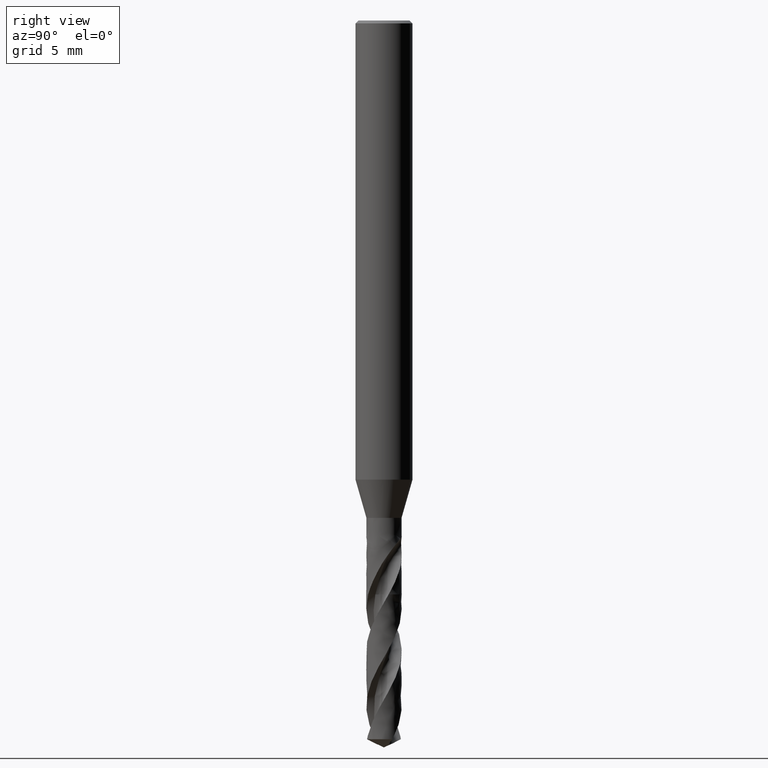
[diagram: clean part render]
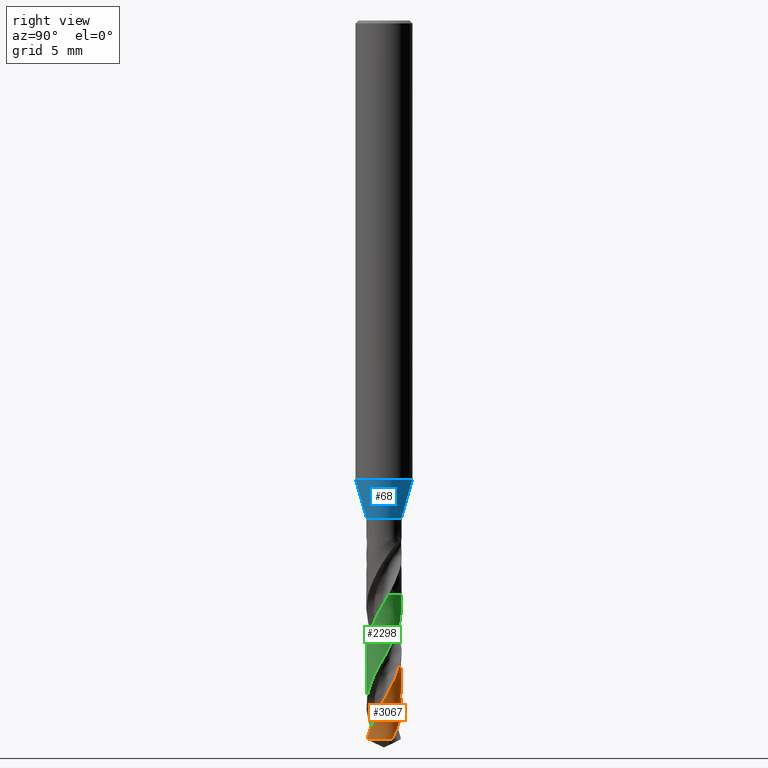
[diagram: same view with three faces highlighted in distinct colors, each labeled with its STEP entity id]
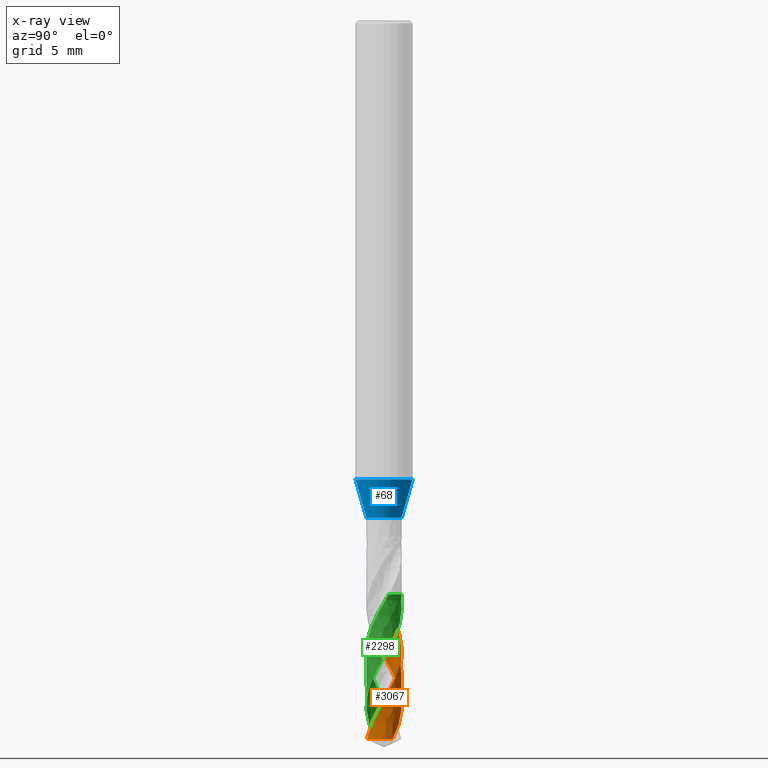
[diagram: x-ray of the same camera — body ghosted, the three highlighted faces saturated]
A machine part, right view with three faces highlighted in distinct colors.
The next image is the same camera in x-ray (body ghosted, the three faces saturated) — at least one of them is partly hidden behind the body in this view.
Their STEP definitions:

[orange] entity #3067 — the highlighted face is a freeform B-spline surface patch.
#1522 = VERTEX_POINT('', #1523);
#1523 = CARTESIAN_POINT('', (-0.925, 1.91950518014579E-15, -30.4228985366592));
#1530 = EDGE_CURVE('', #1522, #1531, #1533, .T.);
#1531 = VERTEX_POINT('', #1532);
#1532 = CARTESIAN_POINT('', (-0.925, 2.09470029642407E-15, -33.2840519141108));
#1533 = LINE('', #1534, #1535);
#1534 = CARTESIAN_POINT('', (-0.925, 1.91950518014579E-15, -30.4228985366592));
#1535 = VECTOR('', #1536, 2.86115337745154);
#1536 = DIRECTION('', (0., 1.75195116278283E-16, -2.86115337745154));
#1669 = VERTEX_POINT('', #1670);
#1670 = CARTESIAN_POINT('', (0.271894161701738, -0.884137186658555, -37.5686654162066));
#1746 = EDGE_CURVE('', #1747, #1669, #1749, .T.);
#1747 = VERTEX_POINT('', #1748);
#1748 = CARTESIAN_POINT('', (0.362879055762634, -0.850848864892476, -37.3976636512472));
#1749 = B_SPLINE_CURVE_WITH_KNOTS('', 3, (#1750, #1751, #1752, #1753), .UNSPECIFIED., .F., .U., (4, 4), (0., 0.196539988125893), .UNSPECIFIED.);
#1750 = CARTESIAN_POINT('', (0.362879055762634, -0.850848864892476, -37.3976636512472));
#1751 = CARTESIAN_POINT('', (0.333159895848818, -0.863523807684986, -37.4546558760244));
#1752 = CARTESIAN_POINT('', (0.302769426541903, -0.874642275260515, -37.5116692671751));
#1753 = CARTESIAN_POINT('', (0.271894161701738, -0.884137186658555, -37.5686654162066));
#2881 = EDGE_CURVE('', #2882, #1531, #2884, .T.);
#2882 = VERTEX_POINT('', #2883);
#2883 = CARTESIAN_POINT('', (0.812066758908832, 0.442913737736037, -37.5686654162066));
#2884 = B_SPLINE_CURVE_WITH_KNOTS('', 3, (#2885, #2886, #2887, #2888, #2889, #2890, #2891, #2892, #2893, #2894, #2895, #2896, #2897, #2898, #2899, #2900, #2901, #2902, #2903, #2904, #2905, #2906, #2907, #2908, #2909, #2910, #2911, #2912, #2913, #2914, #2915, #2916, #2917, #2918, #2919, #2920, #2921, #2922, #2923, #2924, #2925, #2926, #2927, #2928, #2929, #2930, #2931, #2932, #2933, #2934, #2935, #2936, #2937, #2938, #2939, #2940, #2941, #2942), .UNSPECIFIED., .F., .U., (4, 3, 3, 3, 3, 3, 3, 3, 3, 3, 3, 3, 3, 3, 3, 3, 3, 3, 3, 4), (0., 0.295842943623766, 0.591457704914496, 0.886848888350885, 1.18201873387939, 1.4769661943372, 1.7716878859588, 1.968269921476, 1.9942101926381, 2.02015892612081, 2.31678304295163, 2.61313865224851, 2.909242635387, 3.20510690412256, 3.50074015259977, 3.79614732293861, 4.09133090457117, 4.38629006816248, 4.68102162213857, 4.93150001041068), .UNSPECIFIED.);
#2885 = CARTESIAN_POINT('', (0.812066758908832, 0.442913737736037, -37.5686654162066));
#2886 = CARTESIAN_POINT('', (0.788719218323969, 0.485720632162377, -37.482949343206));
#2887 = CARTESIAN_POINT('', (0.76195595837777, 0.526713248863934, -37.3971711722988));
#2888 = CARTESIAN_POINT('', (0.732148644926655, 0.565317045322418, -37.3114620479522));
#2889 = CARTESIAN_POINT('', (0.702364321722465, 0.603891066846161, -37.2258190306681));
#2890 = CARTESIAN_POINT('', (0.669495854562395, 0.640137933745935, -37.1401141150612));
#2891 = CARTESIAN_POINT('', (0.634000138010515, 0.673549422835957, -37.0544781765889));
#2892 = CARTESIAN_POINT('', (0.598531267398636, 0.706935642318302, -36.9689070058545));
#2893 = CARTESIAN_POINT('', (0.560386043588031, 0.737540742771058, -36.8832738812441));
#2894 = CARTESIAN_POINT('', (0.520094755851492, 0.764935582213157, -36.797709632874));
#2895 = CARTESIAN_POINT('', (0.479833658553373, 0.792309894582042, -36.7122094981701));
#2896 = CARTESIAN_POINT('', (0.437369279620449, 0.816519825584494, -36.6266476175681));
#2897 = CARTESIAN_POINT('', (0.393292147406076, 0.837225350063394, -36.5411545205396));
#2898 = CARTESIAN_POINT('', (0.349248223516713, 0.857915274711909, -36.4557258352007));
#2899 = CARTESIAN_POINT('', (0.303528106393631, 0.875137023140049, -36.3702353624237));
#2900 = CARTESIAN_POINT('', (0.256767331718317, 0.88864815161164, -36.2848135862102));
#2901 = CARTESIAN_POINT('', (0.210042350284493, 0.902148937930272, -36.1994571964726));
#2902 = CARTESIAN_POINT('', (0.162208263802413, 0.911965004374228, -36.114039219));
#2903 = CARTESIAN_POINT('', (0.11393004154974, 0.917956941055777, -36.0286898291886));
#2904 = CARTESIAN_POINT('', (0.0817280303935084, 0.921953617048874, -35.9717610137798));
#2905 = CARTESIAN_POINT('', (0.0493019663273122, 0.924255165461492, -35.9148143539505));
#2906 = CARTESIAN_POINT('', (0.0168528502833992, 0.924846463710421, -35.8578886286614));
#2907 = CARTESIAN_POINT('', (0.0125709795268205, 0.924924489339134, -35.8503769109899));
#2908 = CARTESIAN_POINT('', (0.00828849737551177, 0.924972779089471, -35.8428651740759));
#2909 = CARTESIAN_POINT('', (0.00400586953109492, 0.924991325910305, -35.8353535056651));
#2910 = CARTESIAN_POINT('', (-0.000278155406267066, 0.925009878781544, -35.8278393867732));
#2911 = CARTESIAN_POINT('', (-0.00456237796954013, 0.924998669564724, -35.8203252481252));
#2912 = CARTESIAN_POINT('', (-0.0088463376493681, 0.924957697578758, -35.8128111808276));
#2913 = CARTESIAN_POINT('', (-0.0578169649601218, 0.924489340263363, -35.7269166774427));
#2914 = CARTESIAN_POINT('', (-0.106793853399111, 0.92011936157262, -35.6409592603479));
#2915 = CARTESIAN_POINT('', (-0.155085828485638, 0.911906456717828, -35.5550718879023));
#2916 = CARTESIAN_POINT('', (-0.203334089125484, 0.903700986278189, -35.4692622616859));
#2917 = CARTESIAN_POINT('', (-0.250971838998413, 0.891647099654104, -35.3833897500836));
#2918 = CARTESIAN_POINT('', (-0.297327162538436, 0.875911843975697, -35.2975870574712));
#2919 = CARTESIAN_POINT('', (-0.343643127241921, 0.860189948604344, -35.2118572172066));
#2920 = CARTESIAN_POINT('', (-0.388749335588352, 0.840769003944444, -35.1260646766392));
#2921 = CARTESIAN_POINT('', (-0.43200982319226, 0.817919624819825, -35.0403419364931));
#2922 = CARTESIAN_POINT('', (-0.475235288768276, 0.795088743674247, -34.9546885941822));
#2923 = CARTESIAN_POINT('', (-0.516683474973812, 0.768800403783122, -34.8689725525605));
#2924 = CARTESIAN_POINT('', (-0.555770160960998, 0.739421752577914, -34.7833261230432));
#2925 = CARTESIAN_POINT('', (-0.594826326816998, 0.710066041160672, -34.69774656899));
#2926 = CARTESIAN_POINT('', (-0.631584030379025, 0.677580227338801, -34.6121044941311));
#2927 = CARTESIAN_POINT('', (-0.665525088282562, 0.64241836591624, -34.5265320099682));
#2928 = CARTESIAN_POINT('', (-0.699440190610315, 0.607283393648443, -34.4410249652239));
#2929 = CARTESIAN_POINT('', (-0.730594254407018, 0.569423318082944, -34.3554553897683));
#2930 = CARTESIAN_POINT('', (-0.758547987726514, 0.529367500245395, -34.2699552412659));
#2931 = CARTESIAN_POINT('', (-0.786480563336598, 0.489341999980975, -34.1845198063842));
#2932 = CARTESIAN_POINT('', (-0.811260038683053, 0.447063331151001, -34.099022016164));
#2933 = CARTESIAN_POINT('', (-0.832536556359597, 0.403122664117196, -34.0135936218139));
#2934 = CARTESIAN_POINT('', (-0.853796898223128, 0.359215403678609, -33.9282301757676));
#2935 = CARTESIAN_POINT('', (-0.871591736194958, 0.313582317526801, -33.8428043655179));
#2936 = CARTESIAN_POINT('', (-0.885669247563938, 0.266861357112622, -33.7574478009906));
#2937 = CARTESIAN_POINT('', (-0.899735895812386, 0.220176449620798, -33.6721571031228));
#2938 = CARTESIAN_POINT('', (-0.910112266913898, 0.172334584031884, -33.586804217329));
#2939 = CARTESIAN_POINT('', (-0.916650365687522, 0.124004463971796, -33.5015205314175));
#2940 = CARTESIAN_POINT('', (-0.922206786169444, 0.0829309840055791, -33.4290419660762));
#2941 = CARTESIAN_POINT('', (-0.925, 0.0414562931850595, -33.356525514507));
#2942 = CARTESIAN_POINT('', (-0.925, 1.91242163844136E-15, -33.2840519141108));
#3067 = ADVANCED_FACE('', (#3068), #3180, .T.);
#3068 = FACE_OUTER_BOUND('', #3069, .T.);
#3069 = EDGE_LOOP('', (#3070, #3071, #3078, #3079, #3080));
#3070 = ORIENTED_EDGE('', *, *, #1746, .T.);
#3071 = ORIENTED_EDGE('', *, *, #3072, .F.);
#3072 = EDGE_CURVE('', #2882, #1669, #3073, .T.);
#3073 = CIRCLE('', #3074, 0.925000000000002);
#3074 = AXIS2_PLACEMENT_3D('', #3075, #3076, #3077);
#3075 = CARTESIAN_POINT('', (1.40859933698765E-31, 2.30041729250977E-15, -37.5686654162066));
#3076 = DIRECTION('', (3.74939945665464E-33, 6.12323399573677E-17, -1.));
#3077 = DIRECTION('', (-1., 6.12323399573677E-17, 0.));
#3078 = ORIENTED_EDGE('', *, *, #2881, .T.);
#3079 = ORIENTED_EDGE('', *, *, #1530, .F.);
#3080 = ORIENTED_EDGE('', *, *, #3081, .F.);
#3081 = EDGE_CURVE('', #1747, #1522, #3082, .T.);
#3082 = B_SPLINE_CURVE_WITH_KNOTS('', 3, (#3083, #3084, #3085, #3086, #3087, #3088, #3089, #3090, #3091, #3092, #3093, #3094, #3095, #3096, #3097, #3098, #3099, #3100, #3101, #3102, #3103, #3104, #3105, #3106, #3107, #3108, #3109, #3110, #3111, #3112, #3113, #3114, #3115, #3116, #3117, #3118, #3119, #3120, #3121, #3122, #3123, #3124, #3125, #3126, #3127, #3128, #3129, #3130, #3131, #3132, #3133, #3134, #3135, #3136, #3137, #3138, #3139, #3140, #3141, #3142, #3143, #3144, #3145, #3146, #3147, #3148, #3149, #3150, #3151, #3152, #3153, #3154, #3155, #3156, #3157, #3158, #3159, #3160, #3161, #3162, #3163, #3164, #3165, #3166, #3167, #3168, #3169, #3170, #3171, #3172, #3173, #3174, #3175, #3176, #3177, #3178, #3179), .UNSPECIFIED., .F., .U., (4, 3, 3, 3, 3, 3, 3, 3, 3, 3, 3, 3, 3, 3, 3, 3, 3, 3, 3, 3, 3, 3, 3, 3, 3, 3, 3, 3, 3, 3, 3, 3, 4), (0., 0.295983357986602, 0.59173629613057, 0.887264909362773, 1.18257282046558, 1.47766038580693, 1.77252565442124, 2.06716344280766, 2.15464466976431, 2.18058494902013, 2.20653655231685, 2.50315542938442, 2.7995073860792, 3.0956088036099, 3.39147121959104, 3.68710294753753, 3.98250861205662, 4.27769037495481, 4.57264709472683, 4.86737525729605, 5.06395913858259, 5.10286277511507, 5.12880791181646, 5.42544635442833, 5.72181276134617, 6.01792390665811, 6.31379177522369, 6.60942482487331, 6.90482792211159, 7.20000320414499, 7.49494960947729, 7.78966345500974, 8.03147715151217), .UNSPECIFIED.);
#3083 = CARTESIAN_POINT('', (0.362879055762634, -0.850848864892476, -37.3976636512472));
#3084 = CARTESIAN_POINT('', (0.407635223867204, -0.831760779227118, -37.3118350612002));
#3085 = CARTESIAN_POINT('', (0.450924068604158, -0.809111913681973, -37.2259475791744));
#3086 = CARTESIAN_POINT('', (0.492141027838048, -0.78321274805673, -37.1401314270895));
#3087 = CARTESIAN_POINT('', (0.533325900115004, -0.757333744651784, -37.0543820819508));
#3088 = CARTESIAN_POINT('', (0.572503485085438, -0.728170890284849, -36.9685740891656));
#3089 = CARTESIAN_POINT('', (0.609125700373134, -0.69612562166964, -36.8828373944531));
#3090 = CARTESIAN_POINT('', (0.64572013816768, -0.664104658990661, -36.7971657299534));
#3091 = CARTESIAN_POINT('', (0.679817331757597, -0.629158178856954, -36.7114352338625));
#3092 = CARTESIAN_POINT('', (0.710939799482476, -0.591768199138661, -36.6257759643937));
#3093 = CARTESIAN_POINT('', (0.742039024805126, -0.554406142429419, -36.5401806656619));
#3094 = CARTESIAN_POINT('', (0.770214299411358, -0.514548509160044, -36.4545267537231));
#3095 = CARTESIAN_POINT('', (0.795069853508146, -0.472746156031485, -36.3689440161783));
#3096 = CARTESIAN_POINT('', (0.819906861484807, -0.430974993978357, -36.2834251367042));
#3097 = CARTESIAN_POINT('', (0.841465966968565, -0.387200007564938, -36.1978474777518));
#3098 = CARTESIAN_POINT('', (0.859443302574114, -0.342026621274951, -36.1123409501259));
#3099 = CARTESIAN_POINT('', (0.877407095410209, -0.296887265208874, -36.0268988366722));
#3100 = CARTESIAN_POINT('', (0.891821262727206, -0.250284293049262, -35.9413981482258));
#3101 = CARTESIAN_POINT('', (0.902480775864101, -0.20286312921704, -35.8559685159485));
#3102 = CARTESIAN_POINT('', (0.91313206548763, -0.155478549473565, -35.77060479022));
#3103 = CARTESIAN_POINT('', (0.920050319371342, -0.107206621342407, -35.6851823484608));
#3104 = CARTESIAN_POINT('', (0.923134566348326, -0.0587160319920122, -35.5998309325183));
#3105 = CARTESIAN_POINT('', (0.924050313480633, -0.0443186382447434, -35.5744891505628));
#3106 = CARTESIAN_POINT('', (0.92462927681693, -0.029897834345471, -35.5491462508473));
#3107 = CARTESIAN_POINT('', (0.924870604769059, -0.015471406985672, -35.523805583795));
#3108 = CARTESIAN_POINT('', (0.924942164287463, -0.0111936257130976, -35.5162914690216));
#3109 = CARTESIAN_POINT('', (0.924984045982908, -0.00691524136171799, -35.5087773563128));
#3110 = CARTESIAN_POINT('', (0.924996241993904, -0.00263672090958169, -35.5012633315453));
#3111 = CARTESIAN_POINT('', (0.925008443328979, 0.00164366729964829, -35.4937460265849));
#3112 = CARTESIAN_POINT('', (0.924990933247496, 0.00592424170511122, -35.4862287206987));
#3113 = CARTESIAN_POINT('', (0.924943710315862, 0.0102045454150006, -35.4787115060477));
#3114 = CARTESIAN_POINT('', (0.92440396667101, 0.0591271058217382, -35.3927920450048));
#3115 = CARTESIAN_POINT('', (0.919970104479355, 0.108055034545569, -35.3068126388689));
#3116 = CARTESIAN_POINT('', (0.91169930958722, 0.156298972799529, -35.2209058382098));
#3117 = CARTESIAN_POINT('', (0.903435957389485, 0.204499497464609, -35.1350763430665));
#3118 = CARTESIAN_POINT('', (0.891330060475619, 0.252090104177181, -35.0491868768487));
#3119 = CARTESIAN_POINT('', (0.875546990666801, 0.298399844393911, -34.9633697545912));
#3120 = CARTESIAN_POINT('', (0.859777264036684, 0.344670433853102, -34.8776251830613));
#3121 = CARTESIAN_POINT('', (0.840312580953405, 0.389732703725367, -34.791820774983));
#3122 = CARTESIAN_POINT('', (0.817421791226882, 0.432951054078365, -34.7060888135439));
#3123 = CARTESIAN_POINT('', (0.794549478055658, 0.476134520259617, -34.6204260516101));
#3124 = CARTESIAN_POINT('', (0.768221999659932, 0.517542292219585, -34.5347033858034));
#3125 = CARTESIAN_POINT('', (0.738805002375779, 0.556589766762335, -34.4490529436214));
#3126 = CARTESIAN_POINT('', (0.70941094193295, 0.595606795446896, -34.3634692842787));
#3127 = CARTESIAN_POINT('', (0.676887447124097, 0.632326556019208, -34.2778258649001));
#3128 = CARTESIAN_POINT('', (0.641687330598638, 0.666229967615686, -34.1922547684837));
#3129 = CARTESIAN_POINT('', (0.60651413086943, 0.700107453979175, -34.1067491065032));
#3130 = CARTESIAN_POINT('', (0.568615214222157, 0.73122409414128, -34.0211835964706));
#3131 = CARTESIAN_POINT('', (0.52851928889278, 0.759139223903149, -33.9356902131326));
#3132 = CARTESIAN_POINT('', (0.488453754120358, 0.7870331954966, -33.8502616291854));
#3133 = CARTESIAN_POINT('', (0.446133561989244, 0.811772938962163, -33.7647733499014));
#3134 = CARTESIAN_POINT('', (0.402149744220052, 0.833006952686371, -33.6793572851438));
#3135 = CARTESIAN_POINT('', (0.358199459199477, 0.854224777846683, -33.5940063405956));
#3136 = CARTESIAN_POINT('', (0.31252160392997, 0.871974289116439, -33.5085956072758));
#3137 = CARTESIAN_POINT('', (0.265754744314929, 0.886001927692561, -33.4232569080186));
#3138 = CARTESIAN_POINT('', (0.219024123584785, 0.900018696477896, -33.3379843363425));
#3139 = CARTESIAN_POINT('', (0.171135055344649, 0.910340673358133, -33.2526521383922));
#3140 = CARTESIAN_POINT('', (0.122757473235244, 0.916818195044635, -33.1673920453632));
#3141 = CARTESIAN_POINT('', (0.0904895936562376, 0.921138706335955, -33.1105235063665));
#3142 = CARTESIAN_POINT('', (0.0579777061270653, 0.923755429511627, -33.0536380237533));
#3143 = CARTESIAN_POINT('', (0.0254245685586904, 0.924650523881377, -32.9967749809356));
#3144 = CARTESIAN_POINT('', (0.0189823545599441, 0.924827661629371, -32.9855218754651));
#3145 = CARTESIAN_POINT('', (0.0125380128784801, 0.924937477065383, -32.9742687267333));
#3146 = CARTESIAN_POINT('', (0.00609313548368922, 0.92497993151202, -32.9630158322299));
#3147 = CARTESIAN_POINT('', (0.00179499680218264, 0.925008244711498, -32.9555111896773));
#3148 = CARTESIAN_POINT('', (-0.00250344345596161, 0.925006599390346, -32.9480065470136));
#3149 = CARTESIAN_POINT('', (-0.00680171587948326, 0.924974992451741, -32.9405019942101));
#3150 = CARTESIAN_POINT('', (-0.0559451392620508, 0.924613620948813, -32.8547002163374));
#3151 = CARTESIAN_POINT('', (-0.105108677454056, 0.920323059504811, -32.7688373491811));
#3152 = CARTESIAN_POINT('', (-0.153592878319765, 0.912159102201723, -32.6830481668513));
#3153 = CARTESIAN_POINT('', (-0.202032616191682, 0.904002631749535, -32.5973376584774));
#3154 = CARTESIAN_POINT('', (-0.249868857632639, 0.891967274966296, -32.5115661234459));
#3155 = CARTESIAN_POINT('', (-0.296420545989234, 0.87621907073257, -32.4258680380787));
#3156 = CARTESIAN_POINT('', (-0.342932139185077, 0.860484430491957, -32.3402437648251));
#3157 = CARTESIAN_POINT('', (-0.388233310068549, 0.841018999579139, -32.2545585413493));
#3158 = CARTESIAN_POINT('', (-0.431678907078312, 0.818094322913819, -32.1689468442771));
#3159 = CARTESIAN_POINT('', (-0.475088810384372, 0.795188480530284, -32.0834054834129));
#3160 = CARTESIAN_POINT('', (-0.51671302771282, 0.768793771722321, -31.9978031906059));
#3161 = CARTESIAN_POINT('', (-0.555958139716551, 0.739280425064089, -31.912274217201));
#3162 = CARTESIAN_POINT('', (-0.595172104388529, 0.709790502010801, -31.8268131248436));
#3163 = CARTESIAN_POINT('', (-0.632071396880449, 0.677141260260986, -31.7412911860147));
#3164 = CARTESIAN_POINT('', (-0.666129400796148, 0.641791727427962, -31.6558426530158));
#3165 = CARTESIAN_POINT('', (-0.700160913356651, 0.606469690540755, -31.5704605844945));
#3166 = CARTESIAN_POINT('', (-0.73140796096168, 0.568397128821976, -31.485017663448));
#3167 = CARTESIAN_POINT('', (-0.759423717558431, 0.528110421417468, -31.399647959508));
#3168 = CARTESIAN_POINT('', (-0.787417868371801, 0.487854783167574, -31.3143440927808));
#3169 = CARTESIAN_POINT('', (-0.812229026720379, 0.445326102074307, -31.2289794691906));
#3170 = CARTESIAN_POINT('', (-0.833501329916361, 0.40112408682071, -31.1436881476301));
#3171 = CARTESIAN_POINT('', (-0.854757138727899, 0.35695634547841, -31.0584629603211));
#3172 = CARTESIAN_POINT('', (-0.872512312639171, 0.311049783720531, -30.9731770016471));
#3173 = CARTESIAN_POINT('', (-0.886510741057674, 0.264052468250866, -30.887964164141));
#3174 = CARTESIAN_POINT('', (-0.900498131973592, 0.217092209297507, -30.8028185153854));
#3175 = CARTESIAN_POINT('', (-0.910756345260553, 0.168970195078643, -30.7176122066614));
#3176 = CARTESIAN_POINT('', (-0.917135213630838, 0.120366107847339, -30.6324790916571));
#3177 = CARTESIAN_POINT('', (-0.922369096475176, 0.0804862916232526, -30.5626270859029));
#3178 = CARTESIAN_POINT('', (-0.925, 0.0402363713864124, -30.4927421505207));
#3179 = CARTESIAN_POINT('', (-0.925, 1.82669747418103E-15, -30.4228985366592));
#3180 = (
   BOUNDED_SURFACE ()
   B_SPLINE_SURFACE (2, 1, ((#3181, #3182), (#3183, #3184), (#3185, #3186), (#3187, #3188), (#3189, #3190), (#3191, #3192), (#3193, #3194)), .UNSPECIFIED., .F., .F., .U.)
   B_SPLINE_SURFACE_WITH_KNOTS ((3, 2, 2, 3), (2, 2), (0., 1.45298660228528, 2.90597320457056, 4.06823809471099), (0.382317093418843, 1.), .UNSPECIFIED.)
   GEOMETRIC_REPRESENTATION_ITEM ()
   RATIONAL_B_SPLINE_SURFACE (((1., 1.), (0.707106781186548, 0.707106781186548), (1., 1.), (0.707106781186548, 0.707106781186548), (1., 1.), (0.765710499841033, 0.765710499841033), (0.906244084402917, 0.906244084402917)))
   REPRESENTATION_ITEM ('')
   SURFACE ()
);
#3181 = CARTESIAN_POINT('', (-0.925, 1.91950518014579E-15, -30.4228985366592));
#3182 = CARTESIAN_POINT('', (-0.925, 2.35705720697033E-15, -37.5686654162066));
#3183 = CARTESIAN_POINT('', (-0.925, 0.925000000000002, -30.4228985366592));
#3184 = CARTESIAN_POINT('', (-0.925, 0.925000000000002, -37.5686654162066));
#3185 = CARTESIAN_POINT('', (1.10933564796705E-31, 0.925000000000002, -30.4228985366592));
#3186 = CARTESIAN_POINT('', (1.35585468084861E-31, 0.925000000000002, -37.5686654162066));
#3187 = CARTESIAN_POINT('', (0.925, 0.925000000000002, -30.4228985366592));
#3188 = CARTESIAN_POINT('', (0.925, 0.925000000000002, -37.5686654162066));
#3189 = CARTESIAN_POINT('', (0.925, 1.91950518014579E-15, -30.4228985366592));
#3190 = CARTESIAN_POINT('', (0.925, 2.35705720697033E-15, -37.5686654162066));
#3191 = CARTESIAN_POINT('', (0.925, -0.68329090727319, -30.4228985366592));
#3192 = CARTESIAN_POINT('', (0.925, -0.683290907273189, -37.5686654162066));
#3193 = CARTESIAN_POINT('', (0.271894161701737, -0.884137186658556, -30.4228985366592));
#3194 = CARTESIAN_POINT('', (0.271894161701737, -0.884137186658556, -37.5686654162066));

[blue] entity #68 — the highlighted face is a freeform B-spline surface patch.
#68 = ADVANCED_FACE('', (#69), #96, .T.);
#69 = FACE_OUTER_BOUND('', #70, .T.);
#70 = EDGE_LOOP('', (#71, #81, #88, #89));
#71 = ORIENTED_EDGE('', *, *, #72, .F.);
#72 = EDGE_CURVE('', #73, #75, #77, .T.);
#73 = VERTEX_POINT('', #74);
#74 = CARTESIAN_POINT('', (-1.5, 1.56142466891288E-15, -24.));
#75 = VERTEX_POINT('', #76);
#76 = CARTESIAN_POINT('', (-0.925, 1.64868075335212E-15, -26.));
#77 = LINE('', #78, #79);
#78 = CARTESIAN_POINT('', (-1.5, 1.56142466891288E-15, -24.));
#79 = VECTOR('', #80, 2.08101537716568);
#80 = DIRECTION('', (0.575, 8.72560844392488E-17, -2.));
#81 = ORIENTED_EDGE('', *, *, #82, .T.);
#82 = EDGE_CURVE('', #73, #73, #83, .T.);
#83 = CIRCLE('', #84, 1.5);
#84 = AXIS2_PLACEMENT_3D('', #85, #86, #87);
#85 = CARTESIAN_POINT('', (8.99855869597115E-32, 1.46957615897682E-15, -24.));
#86 = DIRECTION('', (3.74939945665464E-33, 6.12323399573677E-17, -1.));
#87 = DIRECTION('', (-1., 6.12323399573677E-17, 0.));
#88 = ORIENTED_EDGE('', *, *, #72, .T.);
#89 = ORIENTED_EDGE('', *, *, #90, .F.);
#90 = EDGE_CURVE('', #75, #75, #91, .T.);
#91 = CIRCLE('', #92, 0.925);
#92 = AXIS2_PLACEMENT_3D('', #93, #94, #95);
#93 = CARTESIAN_POINT('', (9.74843858730207E-32, 1.59204083889156E-15, -26.));
#94 = DIRECTION('', (3.74939945665464E-33, 6.12323399573677E-17, -1.));
#95 = DIRECTION('', (-1., 6.12323399573677E-17, 0.));
#96 = (
   BOUNDED_SURFACE ()
   B_SPLINE_SURFACE (2, 1, ((#97, #98), (#99, #100), (#101, #102), (#103, #104), (#105, #106), (#107, #108), (#109, #110), (#111, #112), (#113, #114)), .UNSPECIFIED., .T., .F., .U.)
   B_SPLINE_SURFACE_WITH_KNOTS ((3, 2, 2, 2, 3), (2, 2), (0., 0.25, 0.5, 0.75, 1.), (0., 1.), .UNSPECIFIED.)
   GEOMETRIC_REPRESENTATION_ITEM ()
   RATIONAL_B_SPLINE_SURFACE (((1., 1.), (0.707106781186548, 0.707106781186548), (1., 1.), (0.707106781186548, 0.707106781186548), (1., 1.), (0.707106781186548, 0.707106781186548), (1., 1.), (0.707106781186548, 0.707106781186548), (1., 1.)))
   REPRESENTATION_ITEM ('')
   SURFACE ()
);
#97 = CARTESIAN_POINT('', (-1.5, 1.56142466891288E-15, -24.));
#98 = CARTESIAN_POINT('', (-0.925, 1.64868075335212E-15, -26.));
#99 = CARTESIAN_POINT('', (-1.5, 1.5, -24.));
#100 = CARTESIAN_POINT('', (-0.925, 0.925000000000001, -26.));
#101 = CARTESIAN_POINT('', (8.62816615085482E-32, 1.5, -24.));
#102 = CARTESIAN_POINT('', (9.86076131526265E-32, 0.925000000000001, -26.));
#103 = CARTESIAN_POINT('', (1.5, 1.5, -24.));
#104 = CARTESIAN_POINT('', (0.924999999999999, 0.925000000000002, -26.));
#105 = CARTESIAN_POINT('', (1.5, 1.56142466891288E-15, -24.));
#106 = CARTESIAN_POINT('', (0.925, 1.64868075335212E-15, -26.));
#107 = CARTESIAN_POINT('', (1.5, -1.5, -24.));
#108 = CARTESIAN_POINT('', (0.925, -0.924999999999998, -26.));
#109 = CARTESIAN_POINT('', (1.83697019872103E-16, -1.5, -24.));
#110 = CARTESIAN_POINT('', (1.1327982892113E-16, -0.924999999999998, -26.));
#111 = CARTESIAN_POINT('', (-1.5, -1.5, -24.));
#112 = CARTESIAN_POINT('', (-0.924999999999999, -0.924999999999998, -26.));
#113 = CARTESIAN_POINT('', (-1.5, 1.56142466891288E-15, -24.));
#114 = CARTESIAN_POINT('', (-0.925, 1.64868075335212E-15, -26.));

[green] entity #2298 — the highlighted face is a freeform B-spline surface patch.
#1441 = VERTEX_POINT('', #1442);
#1442 = CARTESIAN_POINT('', (0.893072812918424, 0.240927272897806, -30.));
#1485 = EDGE_CURVE('', #1486, #1441, #1488, .T.);
#1486 = VERTEX_POINT('', #1487);
#1487 = CARTESIAN_POINT('', (-0.414268588419359, 0.827046876935669, -30.));
#1488 = CIRCLE('', #1489, 0.925000000000002);
#1489 = AXIS2_PLACEMENT_3D('', #1490, #1491, #1492);
#1490 = CARTESIAN_POINT('', (1.12481983699639E-31, 1.83697019872103E-15, -30.));
#1491 = DIRECTION('', (3.74939945665464E-33, 6.12323399573677E-17, -1.));
#1492 = DIRECTION('', (-1., 6.12323399573677E-17, 0.));
#2061 = EDGE_CURVE('', #2062, #1486, #2064, .T.);
#2062 = VERTEX_POINT('', #2063);
#2063 = CARTESIAN_POINT('', (-0.812066758908833, -0.44291373773603, -37.5686654162066));
#2064 = B_SPLINE_CURVE_WITH_KNOTS('', 3, (#2065, #2066, #2067, #2068, #2069, #2070, #2071, #2072, #2073, #2074, #2075, #2076, #2077, #2078, #2079, #2080, #2081, #2082, #2083, #2084, #2085, #2086, #2087, #2088, #2089, #2090, #2091, #2092, #2093, #2094, #2095, #2096, #2097, #2098, #2099, #2100, #2101, #2102, #2103, #2104, #2105, #2106, #2107, #2108, #2109, #2110, #2111, #2112, #2113, #2114, #2115, #2116, #2117, #2118, #2119, #2120, #2121, #2122, #2123, #2124, #2125, #2126, #2127, #2128, #2129, #2130, #2131, #2132, #2133, #2134, #2135, #2136, #2137, #2138, #2139, #2140, #2141, #2142, #2143, #2144, #2145, #2146, #2147, #2148, #2149, #2150, #2151, #2152, #2153, #2154, #2155, #2156, #2157, #2158, #2159, #2160, #2161, #2162, #2163, #2164, #2165, #2166, #2167, #2168, #2169, #2170, #2171, #2172, #2173), .UNSPECIFIED., .F., .U., (4, 3, 3, 3, 3, 3, 3, 3, 3, 3, 3, 3, 3, 3, 3, 3, 3, 3, 3, 3, 3, 3, 3, 3, 3, 3, 3, 3, 3, 3, 3, 3, 3, 3, 3, 3, 4), (0., 0.29584294362376, 0.591457704914492, 0.886848888350883, 1.18201873387938, 1.47696619433719, 1.77168788595879, 1.96826992147599, 1.9942101926381, 2.02015892612081, 2.31678304295163, 2.61313865224851, 2.90924263538699, 3.20510690412255, 3.50074015259975, 3.79614732293859, 4.09133090457116, 4.38629006816246, 4.68102162213855, 4.87760757944737, 4.9165113142333, 4.94245462776783, 5.23909266221933, 5.53545910377481, 5.83157106475754, 6.1274407923074, 6.42307706169338, 6.718485020388, 7.01366714321698, 7.30862270925856, 7.60334843521678, 7.79993101825449, 7.83883460587563, 7.86477808061249, 8.16142321180622, 8.45779413527861, 8.71593351107237), .UNSPECIFIED.);
#2065 = CARTESIAN_POINT('', (-0.812066758908833, -0.44291373773603, -37.5686654162066));
#2066 = CARTESIAN_POINT('', (-0.788719218323971, -0.485720632162369, -37.482949343206));
#2067 = CARTESIAN_POINT('', (-0.761955958377771, -0.526713248863928, -37.3971711722988));
#2068 = CARTESIAN_POINT('', (-0.732148644926657, -0.565317045322411, -37.3114620479522));
#2069 = CARTESIAN_POINT('', (-0.702364321722466, -0.603891066846155, -37.2258190306681));
#2070 = CARTESIAN_POINT('', (-0.669495854562398, -0.640137933745928, -37.1401141150612));
#2071 = CARTESIAN_POINT('', (-0.634000138010518, -0.67354942283595, -37.0544781765889));
#2072 = CARTESIAN_POINT('', (-0.59853126739864, -0.706935642318295, -36.9689070058545));
#2073 = CARTESIAN_POINT('', (-0.560386043588033, -0.737540742771052, -36.8832738812441));
#2074 = CARTESIAN_POINT('', (-0.520094755851494, -0.764935582213151, -36.797709632874));
#2075 = CARTESIAN_POINT('', (-0.479833658553377, -0.792309894582036, -36.7122094981702));
#2076 = CARTESIAN_POINT('', (-0.437369279620453, -0.816519825584488, -36.6266476175681));
#2077 = CARTESIAN_POINT('', (-0.393292147406081, -0.837225350063387, -36.5411545205396));
#2078 = CARTESIAN_POINT('', (-0.349248223516718, -0.857915274711902, -36.4557258352007));
#2079 = CARTESIAN_POINT('', (-0.303528106393637, -0.875137023140043, -36.3702353624237));
#2080 = CARTESIAN_POINT('', (-0.256767331718324, -0.888648151611634, -36.2848135862103));
#2081 = CARTESIAN_POINT('', (-0.2100423502845, -0.902148937930267, -36.1994571964726));
#2082 = CARTESIAN_POINT('', (-0.162208263802417, -0.911965004374222, -36.114039219));
#2083 = CARTESIAN_POINT('', (-0.113930041549745, -0.917956941055772, -36.0286898291886));
#2084 = CARTESIAN_POINT('', (-0.0817280303935138, -0.921953617048869, -35.9717610137798));
#2085 = CARTESIAN_POINT('', (-0.0493019663273175, -0.924255165461487, -35.9148143539505));
#2086 = CARTESIAN_POINT('', (-0.0168528502834049, -0.924846463710416, -35.8578886286614));
#2087 = CARTESIAN_POINT('', (-0.0125709795268254, -0.924924489339129, -35.8503769109899));
#2088 = CARTESIAN_POINT('', (-0.00828849737551706, -0.924972779089466, -35.8428651740759));
#2089 = CARTESIAN_POINT('', (-0.00400586953109933, -0.924991325910301, -35.8353535056651));
#2090 = CARTESIAN_POINT('', (0.000278155406262266, -0.92500987878154, -35.8278393867732));
#2091 = CARTESIAN_POINT('', (0.00456237796953706, -0.92499866956472, -35.8203252481252));
#2092 = CARTESIAN_POINT('', (0.00884633764936464, -0.924957697578754, -35.8128111808276));
#2093 = CARTESIAN_POINT('', (0.0578169649601188, -0.924489340263359, -35.7269166774427));
#2094 = CARTESIAN_POINT('', (0.106793853399108, -0.920119361572616, -35.6409592603479));
#2095 = CARTESIAN_POINT('', (0.155085828485636, -0.911906456717824, -35.5550718879023));
#2096 = CARTESIAN_POINT('', (0.203334089125482, -0.903700986278185, -35.4692622616859));
#2097 = CARTESIAN_POINT('', (0.250971838998409, -0.8916470996541, -35.3833897500836));
#2098 = CARTESIAN_POINT('', (0.297327162538432, -0.875911843975693, -35.2975870574712));
#2099 = CARTESIAN_POINT('', (0.343643127241917, -0.860189948604342, -35.2118572172066));
#2100 = CARTESIAN_POINT('', (0.388749335588347, -0.840769003944442, -35.1260646766392));
#2101 = CARTESIAN_POINT('', (0.432009823192254, -0.817919624819824, -35.0403419364931));
#2102 = CARTESIAN_POINT('', (0.47523528876827, -0.795088743674246, -34.9546885941823));
#2103 = CARTESIAN_POINT('', (0.516683474973806, -0.768800403783122, -34.8689725525605));
#2104 = CARTESIAN_POINT('', (0.555770160960991, -0.739421752577914, -34.7833261230432));
#2105 = CARTESIAN_POINT('', (0.594826326816991, -0.710066041160673, -34.69774656899));
#2106 = CARTESIAN_POINT('', (0.63158403037902, -0.677580227338801, -34.6121044941312));
#2107 = CARTESIAN_POINT('', (0.665525088282557, -0.64241836591624, -34.5265320099682));
#2108 = CARTESIAN_POINT('', (0.69944019061031, -0.607283393648444, -34.4410249652239));
#2109 = CARTESIAN_POINT('', (0.730594254407012, -0.569423318082947, -34.3554553897683));
#2110 = CARTESIAN_POINT('', (0.758547987726509, -0.529367500245398, -34.2699552412659));
#2111 = CARTESIAN_POINT('', (0.786480563336593, -0.489341999980978, -34.1845198063842));
#2112 = CARTESIAN_POINT('', (0.811260038683049, -0.447063331151004, -34.099022016164));
#2113 = CARTESIAN_POINT('', (0.832536556359594, -0.403122664117199, -34.013593621814));
#2114 = CARTESIAN_POINT('', (0.853796898223124, -0.359215403678614, -33.9282301757676));
#2115 = CARTESIAN_POINT('', (0.871591736194955, -0.313582317526806, -33.8428043655179));
#2116 = CARTESIAN_POINT('', (0.885669247563935, -0.266861357112628, -33.7574478009906));
#2117 = CARTESIAN_POINT('', (0.899735895812384, -0.220176449620805, -33.6721571031228));
#2118 = CARTESIAN_POINT('', (0.910112266913896, -0.172334584031889, -33.586804217329));
#2119 = CARTESIAN_POINT('', (0.916650365687521, -0.124004463971801, -33.5015205314175));
#2120 = CARTESIAN_POINT('', (0.921011277809258, -0.091768272119627, -33.4446363097875));
#2121 = CARTESIAN_POINT('', (0.923671182308646, -0.0592881765388088, -33.3877340535853));
#2122 = CARTESIAN_POINT('', (0.924612648867296, -0.0267665753304309, -33.3308529197563));
#2123 = CARTESIAN_POINT('', (0.924798962100494, -0.0203306540390789, -33.3195963245493));
#2124 = CARTESIAN_POINT('', (0.924918079721298, -0.0138925960462972, -33.3083396380576));
#2125 = CARTESIAN_POINT('', (0.924969966066985, -0.00745398376983433, -33.2970831594384));
#2126 = CARTESIAN_POINT('', (0.925004566954065, -0.00316033592510497, -33.289576673089));
#2127 = CARTESIAN_POINT('', (0.925009271452215, 0.00113362173735056, -33.2820701666052));
#2128 = CARTESIAN_POINT('', (0.924984077198643, 0.00542742378808319, -33.2745637309964));
#2129 = CARTESIAN_POINT('', (0.924696003978957, 0.0545231184825133, -33.1887345133152));
#2130 = CARTESIAN_POINT('', (0.92048654702892, 0.103639783522843, -33.1028417405755));
#2131 = CARTESIAN_POINT('', (0.912412482871691, 0.152080442860719, -33.0170196173067));
#2132 = CARTESIAN_POINT('', (0.904345811085677, 0.200476751382359, -32.9312760702024));
#2133 = CARTESIAN_POINT('', (0.892409236369624, 0.248272475856603, -32.845469047599));
#2134 = CARTESIAN_POINT('', (0.876769084154178, 0.294789709914559, -32.7597324607966));
#2135 = CARTESIAN_POINT('', (0.861142361647146, 0.341267001081867, -32.6740694933135));
#2136 = CARTESIAN_POINT('', (0.841794413887165, 0.386539402214029, -32.588343197498));
#2137 = CARTESIAN_POINT('', (0.818996337527619, 0.429965113836409, -32.5026873025873));
#2138 = CARTESIAN_POINT('', (0.796216911060772, 0.473355301195718, -32.4171014782047));
#2139 = CARTESIAN_POINT('', (0.769958126912821, 0.514968233207102, -32.3314523741736));
#2140 = CARTESIAN_POINT('', (0.740588764720854, 0.55421411166556, -32.2458734892021));
#2141 = CARTESIAN_POINT('', (0.711242576638075, 0.59342902287772, -32.1603621308733));
#2142 = CARTESIAN_POINT('', (0.678745691758691, 0.630340780631994, -32.074787635047));
#2143 = CARTESIAN_POINT('', (0.643554822963494, 0.664426210982401, -31.9892833274896));
#2144 = CARTESIAN_POINT('', (0.608391130981211, 0.698485318215604, -31.9038450522482));
#2145 = CARTESIAN_POINT('', (0.570483848955163, 0.72977453304205, -31.8183436735622));
#2146 = CARTESIAN_POINT('', (0.530365942764538, 0.757850227126367, -31.7329123215881));
#2147 = CARTESIAN_POINT('', (0.490278706235328, 0.785904457676983, -31.6475462808649));
#2148 = CARTESIAN_POINT('', (0.447922793415231, 0.810793067055542, -31.5621172781557));
#2149 = CARTESIAN_POINT('', (0.403893689982962, 0.832162776860388, -31.4767582666403));
#2150 = CARTESIAN_POINT('', (0.359898379560004, 0.853516085086593, -31.3914647694698));
#2151 = CARTESIAN_POINT('', (0.31416524739601, 0.871388505238135, -31.3061083417818));
#2152 = CARTESIAN_POINT('', (0.267337175171992, 0.885525739191997, -31.220821754097));
#2153 = CARTESIAN_POINT('', (0.220545593081618, 0.899651956900008, -31.1356016248172));
#2154 = CARTESIAN_POINT('', (0.172589160285192, 0.910070424905206, -31.0503187106052));
#2155 = CARTESIAN_POINT('', (0.124141815372756, 0.916631774310688, -30.9651055890766));
#2156 = CARTESIAN_POINT('', (0.091827350209456, 0.921008206025799, -30.9082682855656));
#2157 = CARTESIAN_POINT('', (0.059267427180976, 0.923675322639789, -30.8514127939498));
#2158 = CARTESIAN_POINT('', (0.0266661151290623, 0.924615551623621, -30.794578585011));
#2159 = CARTESIAN_POINT('', (0.0202143329804253, 0.924801622434632, -30.7833311255811));
#2160 = CARTESIAN_POINT('', (0.0137604097662455, 0.924920166245206, -30.7720835742892));
#2161 = CARTESIAN_POINT('', (0.00730593806613569, 0.924971147262971, -30.760836234387));
#2162 = CARTESIAN_POINT('', (0.00300167119177068, 0.925005144763647, -30.7533357672977));
#2163 = CARTESIAN_POINT('', (-0.00130290446840556, 0.925009097839236, -30.745835281047));
#2164 = CARTESIAN_POINT('', (-0.00560731668471851, 0.924983004167969, -30.7383348657048));
#2165 = CARTESIAN_POINT('', (-0.0548252005484237, 0.924684641646569, -30.6525729654285));
#2166 = CARTESIAN_POINT('', (-0.104063577979058, 0.920445258774299, -30.5667468704712));
#2167 = CARTESIAN_POINT('', (-0.152619954683242, 0.912322393363926, -30.4809920455917));
#2168 = CARTESIAN_POINT('', (-0.201131447679547, 0.904207036428091, -30.3953164892816));
#2169 = CARTESIAN_POINT('', (-0.249037478416595, 0.892202748743335, -30.3095769597387));
#2170 = CARTESIAN_POINT('', (-0.295654416135545, 0.876477875487809, -30.2239083283805));
#2171 = CARTESIAN_POINT('', (-0.33625781630448, 0.862781494887923, -30.1492908633309));
#2172 = CARTESIAN_POINT('', (-0.37594626317844, 0.846242567077593, -30.0746117812771));
#2173 = CARTESIAN_POINT('', (-0.414268588419359, 0.827046876935669, -30.));
#2298 = ADVANCED_FACE('', (#2299), #2408, .T.);
#2299 = FACE_OUTER_BOUND('', #2300, .T.);
#2300 = EDGE_LOOP('', (#2301, #2302, #2314, #2392, #2400, #2407));
#2301 = ORIENTED_EDGE('', *, *, #1485, .T.);
#2302 = ORIENTED_EDGE('', *, *, #2303, .T.);
#2303 = EDGE_CURVE('', #1441, #2304, #2306, .T.);
#2304 = VERTEX_POINT('', #2305);
#2305 = CARTESIAN_POINT('', (0.917333020354503, 0.118849189173863, -30.2160729917092));
#2306 = B_SPLINE_CURVE_WITH_KNOTS('', 3, (#2307, #2308, #2309, #2310, #2311, #2312, #2313), .UNSPECIFIED., .F., .U., (4, 3, 4), (1.36957881376533, 1.45132466089474, 1.61896036066395), .UNSPECIFIED.);
#2307 = CARTESIAN_POINT('', (0.893072812918424, 0.240927272897806, -30.));
#2308 = CARTESIAN_POINT('', (0.896617846399023, 0.227786489854321, -30.0236059233398));
#2309 = CARTESIAN_POINT('', (0.899873663792041, 0.214563754863088, -30.0472196339833));
#2310 = CARTESIAN_POINT('', (0.902835075462373, 0.201280467295328, -30.0708262298923));
#2311 = CARTESIAN_POINT('', (0.908908023937356, 0.174040512180153, -30.1192361291514));
#2312 = CARTESIAN_POINT('', (0.913747840627969, 0.146521264767447, -30.1676600087109));
#2313 = CARTESIAN_POINT('', (0.917333020354502, 0.11884918917387, -30.2160729917092));
#2314 = ORIENTED_EDGE('', *, *, #2315, .T.);
#2315 = EDGE_CURVE('', #2304, #2316, #2318, .T.);
#2316 = VERTEX_POINT('', #2317);
#2317 = CARTESIAN_POINT('', (-0.925, 2.23018179551313E-15, -35.4966327036639));
#2318 = B_SPLINE_CURVE_WITH_KNOTS('', 3, (#2319, #2320, #2321, #2322, #2323, #2324, #2325, #2326, #2327, #2328, #2329, #2330, #2331, #2332, #2333, #2334, #2335, #2336, #2337, #2338, #2339, #2340, #2341, #2342, #2343, #2344, #2345, #2346, #2347, #2348, #2349, #2350, #2351, #2352, #2353, #2354, #2355, #2356, #2357, #2358, #2359, #2360, #2361, #2362, #2363, #2364, #2365, #2366, #2367, #2368, #2369, #2370, #2371, #2372, #2373, #2374, #2375, #2376, #2377, #2378, #2379, #2380, #2381, #2382, #2383, #2384, #2385, #2386, #2387, #2388, #2389, #2390, #2391), .UNSPECIFIED., .F., .U., (4, 3, 3, 3, 3, 3, 3, 3, 3, 3, 3, 3, 3, 3, 3, 3, 3, 3, 3, 3, 3, 3, 3, 3, 4), (0., 0.196572889448093, 0.235476086897672, 0.261430300248951, 0.558071319128698, 0.85443443055216, 1.15053840211826, 1.44639659715282, 1.74201903262042, 2.03741175548769, 2.33257826567543, 2.62751866603558, 2.92223061307609, 3.11880784608381, 3.1577114139683, 3.45435993145749, 3.75073387558011, 4.04685175793105, 4.34272714118941, 4.63836995694697, 4.93378650156878, 5.22898035448066, 5.52395195498695, 5.81869922403045, 6.08423190773779), .UNSPECIFIED.);
#2319 = CARTESIAN_POINT('', (0.917333020354503, 0.118849189173863, -30.2160729917092));
#2320 = CARTESIAN_POINT('', (0.921537071991509, 0.0864003738920082, -30.2728429993382));
#2321 = CARTESIAN_POINT('', (0.924017854755063, 0.0537213602736353, -30.3296355090319));
#2322 = CARTESIAN_POINT('', (0.924761153539115, 0.0210192508215509, -30.3864109700503));
#2323 = CARTESIAN_POINT('', (0.924908257747845, 0.0145472666908594, -30.3976472446785));
#2324 = CARTESIAN_POINT('', (0.924987414391879, 0.00807383032360242, -30.4088837778516));
#2325 = CARTESIAN_POINT('', (0.924998615268458, 0.00160054723009172, -30.420120261567));
#2326 = CARTESIAN_POINT('', (0.925006087917482, -0.00271809446279099, -30.4276166658419));
#2327 = CARTESIAN_POINT('', (0.924983315349762, -0.00703673284312052, -30.4351131631746));
#2328 = CARTESIAN_POINT('', (0.924930303585802, -0.0113548891969551, -30.4426096633194));
#2329 = CARTESIAN_POINT('', (0.924324411068052, -0.0607088142474487, -30.5282901426659));
#2330 = CARTESIAN_POINT('', (0.919755327060476, -0.110041517491307, -30.6140453341525));
#2331 = CARTESIAN_POINT('', (0.911293823158842, -0.15864604587742, -30.6997385330469));
#2332 = CARTESIAN_POINT('', (0.902840246397677, -0.207205039222901, -30.785351450465));
#2333 = CARTESIAN_POINT('', (0.890488365753623, -0.255113255173384, -30.871038646801));
#2334 = CARTESIAN_POINT('', (0.874419816456992, -0.301686898269248, -30.9566640397397));
#2335 = CARTESIAN_POINT('', (0.858365317497303, -0.348219817379017, -31.0422145618485));
#2336 = CARTESIAN_POINT('', (0.838575760257729, -0.393492808161856, -31.1278391435383));
#2337 = CARTESIAN_POINT('', (0.815338182453312, -0.436862276047874, -31.2134023106365));
#2338 = CARTESIAN_POINT('', (0.792119892641704, -0.480195745776434, -31.2988944573484));
#2339 = CARTESIAN_POINT('', (0.765423224825668, -0.521696315408497, -31.3844602640292));
#2340 = CARTESIAN_POINT('', (0.735632238341975, -0.560776434875829, -31.4699648084502));
#2341 = CARTESIAN_POINT('', (0.705864991305727, -0.599825412694234, -31.5554012171403));
#2342 = CARTESIAN_POINT('', (0.672962463647918, -0.636518093843341, -31.640911106634));
#2343 = CARTESIAN_POINT('', (0.637395354748051, -0.670337349209788, -31.7263600991711));
#2344 = CARTESIAN_POINT('', (0.601855883172323, -0.704130325416876, -31.8117426938036));
#2345 = CARTESIAN_POINT('', (0.563601053892273, -0.735106635216166, -31.8971983716816));
#2346 = CARTESIAN_POINT('', (0.523175488026358, -0.762831835156595, -31.9825932992808));
#2347 = CARTESIAN_POINT('', (0.48278088018638, -0.7905358030514, -32.0679228311749));
#2348 = CARTESIAN_POINT('', (0.440156958196877, -0.815036163573362, -32.1533252893642));
#2349 = CARTESIAN_POINT('', (0.395908021559187, -0.835991530139575, -32.2386673505734));
#2350 = CARTESIAN_POINT('', (0.351692981447996, -0.856930844023123, -32.323944036213));
#2351 = CARTESIAN_POINT('', (0.305787498357215, -0.874362817567994, -32.4092932462132));
#2352 = CARTESIAN_POINT('', (0.258839842972801, -0.888046696795825, -32.4945822071332));
#2353 = CARTESIAN_POINT('', (0.211928552046116, -0.901719976839445, -32.579805105397));
#2354 = CARTESIAN_POINT('', (0.163905259542738, -0.911671852376968, -32.6651003825449));
#2355 = CARTESIAN_POINT('', (0.115445557950133, -0.917767575778083, -32.7503357605861));
#2356 = CARTESIAN_POINT('', (0.0831222193576034, -0.921833513557005, -32.8071890199736));
#2357 = CARTESIAN_POINT('', (0.0505772946913741, -0.92419026292898, -32.8640645038905));
#2358 = CARTESIAN_POINT('', (0.018015008174993, -0.924824556054034, -32.9209232617017));
#2359 = CARTESIAN_POINT('', (0.011570777047198, -0.924950085675504, -32.9321758798736));
#2360 = CARTESIAN_POINT('', (0.00512533463006611, -0.925008254110007, -32.9434287574156));
#2361 = CARTESIAN_POINT('', (-0.00131975203789991, -0.924999058515496, -32.9546815820175));
#2362 = CARTESIAN_POINT('', (-0.050464997811202, -0.924928940024385, -33.0404869185778));
#2363 = CARTESIAN_POINT('', (-0.0996314531612073, -0.920929793329585, -33.1263657375789));
#2364 = CARTESIAN_POINT('', (-0.14812097813933, -0.913063620913157, -33.2121835980735));
#2365 = CARTESIAN_POINT('', (-0.196565621948892, -0.905204729306559, -33.2979220268585));
#2366 = CARTESIAN_POINT('', (-0.244408990955714, -0.893473979619384, -33.3837337190404));
#2367 = CARTESIAN_POINT('', (-0.290974824947147, -0.878042511070491, -33.469484618422));
#2368 = CARTESIAN_POINT('', (-0.337500426893261, -0.862624375033631, -33.5551614305646));
#2369 = CARTESIAN_POINT('', (-0.382821826046614, -0.843488386416524, -33.6409111424394));
#2370 = CARTESIAN_POINT('', (-0.426300684976352, -0.820909694173902, -33.7266004543575));
#2371 = CARTESIAN_POINT('', (-0.469743937870571, -0.798349492244452, -33.8122195929372));
#2372 = CARTESIAN_POINT('', (-0.511413970351513, -0.7723178786108, -33.8979114104958));
#2373 = CARTESIAN_POINT('', (-0.550726574750556, -0.74318587167922, -33.983542953351));
#2374 = CARTESIAN_POINT('', (-0.590008278186989, -0.714076763435495, -34.0691071870786));
#2375 = CARTESIAN_POINT('', (-0.62699587253881, -0.681828007772603, -34.1547437796536));
#2376 = CARTESIAN_POINT('', (-0.661172856425117, -0.646896787692327, -34.2403204945774));
#2377 = CARTESIAN_POINT('', (-0.695323682851989, -0.611992302328469, -34.3258317130999));
#2378 = CARTESIAN_POINT('', (-0.72672001724094, -0.574356602089099, -34.4114150595008));
#2379 = CARTESIAN_POINT('', (-0.754925794318094, -0.534520387892915, -34.4969386276873));
#2380 = CARTESIAN_POINT('', (-0.783110309239011, -0.494714203140977, -34.5823977262631));
#2381 = CARTESIAN_POINT('', (-0.808151558767514, -0.452650888001896, -34.6679286639603));
#2382 = CARTESIAN_POINT('', (-0.829703753163368, -0.408921364062375, -34.7534002288691));
#2383 = CARTESIAN_POINT('', (-0.851239720842428, -0.365224764222713, -34.8388074419606));
#2384 = CARTESIAN_POINT('', (-0.869324391868518, -0.319798671942847, -34.9242862472532));
#2385 = CARTESIAN_POINT('', (-0.883710307659586, -0.273278415057475, -35.0097057644354));
#2386 = CARTESIAN_POINT('', (-0.898085282690501, -0.226793537704433, -35.0950603184646));
#2387 = CARTESIAN_POINT('', (-0.908788664916747, -0.179146644265698, -35.1804861966034));
#2388 = CARTESIAN_POINT('', (-0.915676524996866, -0.131001914374037, -35.2658532042255));
#2389 = CARTESIAN_POINT('', (-0.921881678238863, -0.0876291653203011, -35.3427588553195));
#2390 = CARTESIAN_POINT('', (-0.924999999999999, -0.0437967530995775, -35.4197170168675));
#2391 = CARTESIAN_POINT('', (-0.924999999999999, 1.43431257641852E-15, -35.4966327036639));
#2392 = ORIENTED_EDGE('', *, *, #2393, .T.);
#2393 = EDGE_CURVE('', #2316, #2394, #2396, .T.);
#2394 = VERTEX_POINT('', #2395);
#2395 = CARTESIAN_POINT('', (-0.925, 2.35705720697033E-15, -37.5686654162066));
#2396 = LINE('', #2397, #2398);
#2397 = CARTESIAN_POINT('', (-0.925, 2.23018179551313E-15, -35.4966327036639));
#2398 = VECTOR('', #2399, 2.07203271254272);
#2399 = DIRECTION('', (0., 1.26875411457203E-16, -2.07203271254272));
#2400 = ORIENTED_EDGE('', *, *, #2401, .F.);
#2401 = EDGE_CURVE('', #2062, #2394, #2402, .T.);
#2402 = CIRCLE('', #2403, 0.925000000000002);
#2403 = AXIS2_PLACEMENT_3D('', #2404, #2405, #2406);
#2404 = CARTESIAN_POINT('', (1.40859933698765E-31, 2.30041729250977E-15, -37.5686654162066));
#2405 = DIRECTION('', (3.74939945665464E-33, 6.12323399573677E-17, -1.));
#2406 = DIRECTION('', (-1., 6.12323399573677E-17, 0.));
#2407 = ORIENTED_EDGE('', *, *, #2061, .T.);
#2408 = (
   BOUNDED_SURFACE ()
   B_SPLINE_SURFACE (2, 1, ((#2409, #2410), (#2411, #2412), (#2413, #2414), (#2415, #2416), (#2417, #2418), (#2419, #2420), (#2421, #2422), (#2423, #2424), (#2425, #2426)), .UNSPECIFIED., .F., .F., .U.)
   B_SPLINE_SURFACE_WITH_KNOTS ((3, 2, 2, 2, 3), (2, 2), (1.01046524229432, 1.45298660228528, 2.90597320457056, 4.35895980685584, 5.81194640914112), (0.345761577164845, 1.), .UNSPECIFIED.)
   GEOMETRIC_REPRESENTATION_ITEM ()
   RATIONAL_B_SPLINE_SURFACE (((0.875928592003081, 0.875928592003081), (0.910796489576984, 0.910796489576984), (1., 1.), (0.707106781186548, 0.707106781186548), (1., 1.), (0.707106781186548, 0.707106781186548), (1., 1.), (0.707106781186548, 0.707106781186548), (1., 1.)))
   REPRESENTATION_ITEM ('')
   SURFACE ()
);
#2409 = CARTESIAN_POINT('', (-0.414268588419357, 0.827046876935665, -30.));
#2410 = CARTESIAN_POINT('', (-0.414268588419357, 0.827046876935665, -37.5686654162066));
#2411 = CARTESIAN_POINT('', (-0.21871472123972, 0.925000000000002, -30.));
#2412 = CARTESIAN_POINT('', (-0.21871472123972, 0.925000000000002, -37.5686654162066));
#2413 = CARTESIAN_POINT('', (1.10933564796705E-31, 0.925000000000002, -30.));
#2414 = CARTESIAN_POINT('', (1.35585468084861E-31, 0.925000000000002, -37.5686654162066));
#2415 = CARTESIAN_POINT('', (0.925, 0.925000000000002, -30.));
#2416 = CARTESIAN_POINT('', (0.925, 0.925000000000002, -37.5686654162066));
#2417 = CARTESIAN_POINT('', (0.925, 1.8936101131816E-15, -30.));
#2418 = CARTESIAN_POINT('', (0.925, 2.35705720697033E-15, -37.5686654162066));
#2419 = CARTESIAN_POINT('', (0.925, -0.924999999999998, -30.));
#2420 = CARTESIAN_POINT('', (0.925, -0.924999999999998, -37.5686654162066));
#2421 = CARTESIAN_POINT('', (1.1327982892113E-16, -0.924999999999998, -30.));
#2422 = CARTESIAN_POINT('', (1.1327982892113E-16, -0.924999999999998, -37.5686654162066));
#2423 = CARTESIAN_POINT('', (-0.925, -0.924999999999998, -30.));
#2424 = CARTESIAN_POINT('', (-0.925, -0.924999999999998, -37.5686654162066));
#2425 = CARTESIAN_POINT('', (-0.925, 1.8936101131816E-15, -30.));
#2426 = CARTESIAN_POINT('', (-0.925, 2.35705720697033E-15, -37.5686654162066));